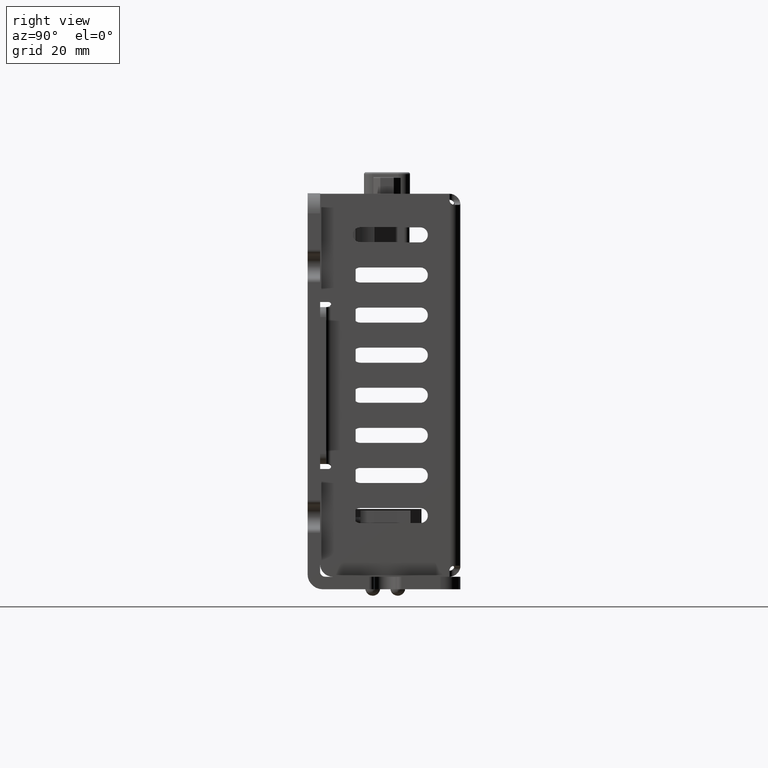
[diagram: clean part render]
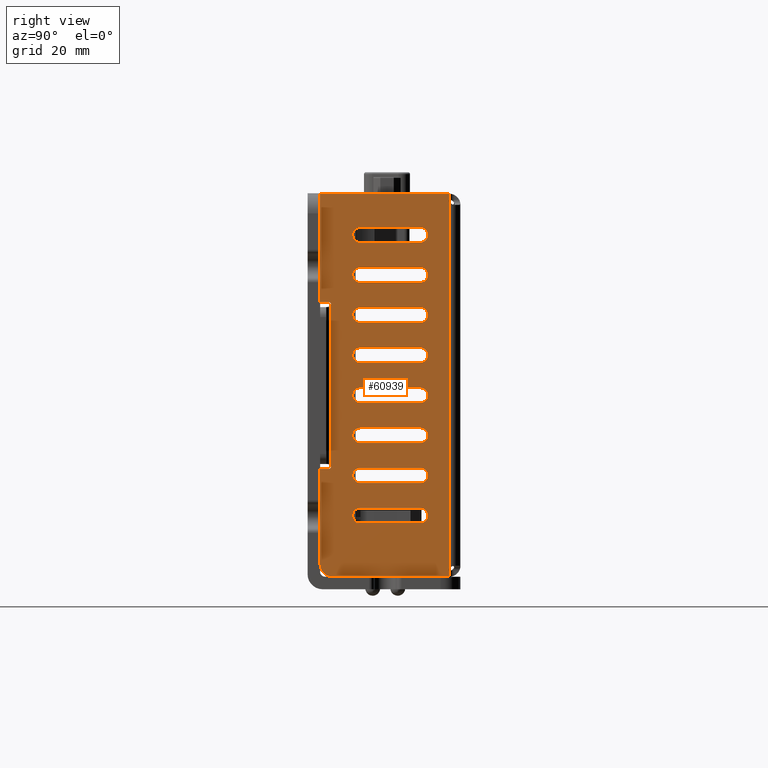
[diagram: same view with one face highlighted and labeled with its STEP entity id]
A machine part, right view. The second image highlights one B-rep face of the part: STEP entity #60939.
In plain terms, the highlighted planar face has unit normal (1, 0, 0).
Its self-contained STEP definition (entity closure, byte-faithful):
#50779=DIRECTION('',(0.E0,-1.E0,0.E0));
#50780=VECTOR('',#50779,7.399971800832E1);
#50781=CARTESIAN_POINT('',(4.620000001314E1,3.699985900416E1,
-2.199999973494E0));
#50782=LINE('',#50781,#50780);
#51295=CARTESIAN_POINT('',(4.620000001314E1,-3.699985900416E1,
-2.199999973494E0));
#51326=CARTESIAN_POINT('',(4.62E1,3.57E1,-2.55E1));
#51327=DIRECTION('',(1.E0,0.E0,0.E0));
#51328=DIRECTION('',(0.E0,0.E0,-1.E0));
#51329=AXIS2_PLACEMENT_3D('',#51326,#51327,#51328);
#51331=DIRECTION('',(0.E0,1.E0,0.E0));
#51332=VECTOR('',#51331,1.9E1);
#51333=CARTESIAN_POINT('',(4.62E1,1.67E1,-2.8E1));
#51334=LINE('',#51333,#51332);
#51335=DIRECTION('',(0.E0,0.E0,1.E0));
#51336=VECTOR('',#51335,1.7E0);
#51337=CARTESIAN_POINT('',(4.62E1,1.67E1,-2.8E1));
#51338=LINE('',#51337,#51336);
#51339=CARTESIAN_POINT('',(4.62E1,1.62E1,-2.63E1));
#51340=DIRECTION('',(1.E0,0.E0,0.E0));
#51341=DIRECTION('',(0.E0,1.E0,0.E0));
#51342=AXIS2_PLACEMENT_3D('',#51339,#51340,#51341);
#51344=DIRECTION('',(1.421085471520E-14,-1.E0,1.421085471520E-14));
#51345=VECTOR('',#51344,5.E-1);
#51346=CARTESIAN_POINT('',(4.62E1,1.62E1,-2.58E1));
#51347=LINE('',#51346,#51345);
#51348=DIRECTION('',(-1.421085471520E-14,-1.E0,-1.421085471520E-14));
#51349=VECTOR('',#51348,5.E-1);
#51350=CARTESIAN_POINT('',(4.62E1,-1.56E1,-2.58E1));
#51351=LINE('',#51350,#51349);
#51352=CARTESIAN_POINT('',(4.62E1,-1.61E1,-2.63E1));
#51353=DIRECTION('',(-1.E0,0.E0,0.E0));
#51354=DIRECTION('',(0.E0,-1.E0,0.E0));
#51355=AXIS2_PLACEMENT_3D('',#51352,#51353,#51354);
#51357=DIRECTION('',(0.E0,0.E0,1.E0));
#51358=VECTOR('',#51357,1.7E0);
#51359=CARTESIAN_POINT('',(4.62E1,-1.66E1,-2.8E1));
#51360=LINE('',#51359,#51358);
#51361=DIRECTION('',(0.E0,1.E0,0.E0));
#51362=VECTOR('',#51361,2.15E1);
#51363=CARTESIAN_POINT('',(4.62E1,-3.81E1,-2.8E1));
#51364=LINE('',#51363,#51362);
#51365=CARTESIAN_POINT('',(4.62E1,-3.81E1,-2.79E1));
#51366=DIRECTION('',(1.E0,0.E0,0.E0));
#51367=DIRECTION('',(0.E0,-1.E0,0.E0));
#51368=AXIS2_PLACEMENT_3D('',#51365,#51366,#51367);
#51370=DIRECTION('',(0.E0,0.E0,-1.E0));
#51371=VECTOR('',#51370,2.57E1);
#51372=CARTESIAN_POINT('',(4.62E1,-3.82E1,-2.2E0));
#51373=LINE('',#51372,#51371);
#51374=DIRECTION('',(1.094593923855E-8,1.E0,2.208610212725E-8));
#51375=VECTOR('',#51374,1.200140995838E0);
#51376=CARTESIAN_POINT('',(4.62E1,-3.82E1,-2.2E0));
#51377=LINE('',#51376,#51375);
#51378=DIRECTION('',(1.094593923855E-8,-1.E0,2.208610212725E-8));
#51379=VECTOR('',#51378,1.200140995838E0);
#51380=CARTESIAN_POINT('',(4.62E1,3.82E1,-2.2E0));
#51381=LINE('',#51380,#51379);
#51382=DIRECTION('',(0.E0,0.E0,1.E0));
#51383=VECTOR('',#51382,2.33E1);
#51384=CARTESIAN_POINT('',(4.62E1,3.82E1,-2.55E1));
#51385=LINE('',#51384,#51383);
#51386=CARTESIAN_POINT('',(4.62E1,-3.E1,-8.E0));
#51387=DIRECTION('',(1.E0,0.E0,0.E0));
#51388=DIRECTION('',(0.E0,1.E0,0.E0));
#51389=AXIS2_PLACEMENT_3D('',#51386,#51387,#51388);
#51391=DIRECTION('',(0.E0,0.E0,-1.E0));
#51392=VECTOR('',#51391,1.2E1);
#51393=CARTESIAN_POINT('',(4.62E1,-3.15E1,-8.E0));
#51394=LINE('',#51393,#51392);
#51395=CARTESIAN_POINT('',(4.62E1,-3.E1,-2.E1));
#51396=DIRECTION('',(1.E0,0.E0,0.E0));
#51397=DIRECTION('',(0.E0,-1.E0,0.E0));
#51398=AXIS2_PLACEMENT_3D('',#51395,#51396,#51397);
#51400=DIRECTION('',(0.E0,0.E0,1.E0));
#51401=VECTOR('',#51400,1.2E1);
#51402=CARTESIAN_POINT('',(4.62E1,-2.85E1,-2.E1));
#51403=LINE('',#51402,#51401);
#51404=CARTESIAN_POINT('',(4.62E1,-2.2E1,-8.E0));
#51405=DIRECTION('',(1.E0,0.E0,0.E0));
#51406=DIRECTION('',(0.E0,1.E0,0.E0));
#51407=AXIS2_PLACEMENT_3D('',#51404,#51405,#51406);
#51409=DIRECTION('',(0.E0,0.E0,-1.E0));
#51410=VECTOR('',#51409,1.2E1);
#51411=CARTESIAN_POINT('',(4.62E1,-2.35E1,-8.E0));
#51412=LINE('',#51411,#51410);
#51413=CARTESIAN_POINT('',(4.62E1,-2.2E1,-2.E1));
#51414=DIRECTION('',(1.E0,0.E0,0.E0));
#51415=DIRECTION('',(0.E0,-1.E0,-4.026408835974E-14));
#51416=AXIS2_PLACEMENT_3D('',#51413,#51414,#51415);
#51418=DIRECTION('',(0.E0,0.E0,1.E0));
#51419=VECTOR('',#51418,1.2E1);
#51420=CARTESIAN_POINT('',(4.62E1,-2.05E1,-2.E1));
#51421=LINE('',#51420,#51419);
#51422=CARTESIAN_POINT('',(4.62E1,-1.4E1,-8.E0));
#51423=DIRECTION('',(1.E0,0.E0,0.E0));
#51424=DIRECTION('',(0.E0,1.E0,0.E0));
#51425=AXIS2_PLACEMENT_3D('',#51422,#51423,#51424);
#51427=DIRECTION('',(0.E0,0.E0,-1.E0));
#51428=VECTOR('',#51427,1.2E1);
#51429=CARTESIAN_POINT('',(4.62E1,-1.55E1,-8.E0));
#51430=LINE('',#51429,#51428);
#51431=CARTESIAN_POINT('',(4.62E1,-1.4E1,-2.E1));
#51432=DIRECTION('',(1.E0,0.E0,0.E0));
#51433=DIRECTION('',(0.E0,-1.E0,-4.026408835974E-14));
#51434=AXIS2_PLACEMENT_3D('',#51431,#51432,#51433);
#51436=DIRECTION('',(0.E0,0.E0,1.E0));
#51437=VECTOR('',#51436,1.2E1);
#51438=CARTESIAN_POINT('',(4.62E1,-1.25E1,-2.E1));
#51439=LINE('',#51438,#51437);
#51440=CARTESIAN_POINT('',(4.62E1,-6.E0,-8.E0));
#51441=DIRECTION('',(1.E0,0.E0,0.E0));
#51442=DIRECTION('',(0.E0,1.E0,0.E0));
#51443=AXIS2_PLACEMENT_3D('',#51440,#51441,#51442);
#51445=DIRECTION('',(0.E0,0.E0,-1.E0));
#51446=VECTOR('',#51445,1.2E1);
#51447=CARTESIAN_POINT('',(4.62E1,-7.5E0,-8.E0));
#51448=LINE('',#51447,#51446);
#51449=CARTESIAN_POINT('',(4.62E1,-6.E0,-2.E1));
#51450=DIRECTION('',(1.E0,0.E0,0.E0));
#51451=DIRECTION('',(0.E0,-1.E0,-4.026408835974E-14));
#51452=AXIS2_PLACEMENT_3D('',#51449,#51450,#51451);
#51454=DIRECTION('',(0.E0,0.E0,1.E0));
#51455=VECTOR('',#51454,1.2E1);
#51456=CARTESIAN_POINT('',(4.62E1,-4.5E0,-2.E1));
#51457=LINE('',#51456,#51455);
#51458=CARTESIAN_POINT('',(4.62E1,2.E0,-8.E0));
#51459=DIRECTION('',(1.E0,0.E0,0.E0));
#51460=DIRECTION('',(0.E0,1.E0,0.E0));
#51461=AXIS2_PLACEMENT_3D('',#51458,#51459,#51460);
#51463=DIRECTION('',(0.E0,0.E0,-1.E0));
#51464=VECTOR('',#51463,1.2E1);
#51465=CARTESIAN_POINT('',(4.62E1,5.E-1,-8.E0));
#51466=LINE('',#51465,#51464);
#51467=CARTESIAN_POINT('',(4.62E1,2.E0,-2.E1));
#51468=DIRECTION('',(1.E0,0.E0,0.E0));
#51469=DIRECTION('',(0.E0,-1.E0,0.E0));
#51470=AXIS2_PLACEMENT_3D('',#51467,#51468,#51469);
#51472=DIRECTION('',(0.E0,0.E0,1.E0));
#51473=VECTOR('',#51472,1.2E1);
#51474=CARTESIAN_POINT('',(4.62E1,3.5E0,-2.E1));
#51475=LINE('',#51474,#51473);
#51476=CARTESIAN_POINT('',(4.62E1,1.E1,-8.E0));
#51477=DIRECTION('',(1.E0,0.E0,0.E0));
#51478=DIRECTION('',(0.E0,1.E0,0.E0));
#51479=AXIS2_PLACEMENT_3D('',#51476,#51477,#51478);
#51481=DIRECTION('',(0.E0,0.E0,-1.E0));
#51482=VECTOR('',#51481,1.2E1);
#51483=CARTESIAN_POINT('',(4.62E1,8.5E0,-8.E0));
#51484=LINE('',#51483,#51482);
#51485=CARTESIAN_POINT('',(4.62E1,1.E1,-2.E1));
#51486=DIRECTION('',(1.E0,0.E0,0.E0));
#51487=DIRECTION('',(0.E0,-1.E0,0.E0));
#51488=AXIS2_PLACEMENT_3D('',#51485,#51486,#51487);
#51490=DIRECTION('',(0.E0,0.E0,1.E0));
#51491=VECTOR('',#51490,1.2E1);
#51492=CARTESIAN_POINT('',(4.62E1,1.15E1,-2.E1));
#51493=LINE('',#51492,#51491);
#51494=CARTESIAN_POINT('',(4.62E1,1.8E1,-8.E0));
#51495=DIRECTION('',(1.E0,0.E0,0.E0));
#51496=DIRECTION('',(0.E0,1.E0,0.E0));
#51497=AXIS2_PLACEMENT_3D('',#51494,#51495,#51496);
#51499=DIRECTION('',(0.E0,0.E0,-1.E0));
#51500=VECTOR('',#51499,1.2E1);
#51501=CARTESIAN_POINT('',(4.62E1,1.65E1,-8.E0));
#51502=LINE('',#51501,#51500);
#51503=CARTESIAN_POINT('',(4.62E1,1.8E1,-2.E1));
#51504=DIRECTION('',(1.E0,0.E0,0.E0));
#51505=DIRECTION('',(0.E0,-1.E0,0.E0));
#51506=AXIS2_PLACEMENT_3D('',#51503,#51504,#51505);
#51508=DIRECTION('',(0.E0,0.E0,1.E0));
#51509=VECTOR('',#51508,1.2E1);
#51510=CARTESIAN_POINT('',(4.62E1,1.95E1,-2.E1));
#51511=LINE('',#51510,#51509);
#51512=CARTESIAN_POINT('',(4.62E1,2.6E1,-8.E0));
#51513=DIRECTION('',(1.E0,0.E0,0.E0));
#51514=DIRECTION('',(0.E0,1.E0,0.E0));
#51515=AXIS2_PLACEMENT_3D('',#51512,#51513,#51514);
#51517=DIRECTION('',(0.E0,0.E0,-1.E0));
#51518=VECTOR('',#51517,1.2E1);
#51519=CARTESIAN_POINT('',(4.62E1,2.45E1,-8.E0));
#51520=LINE('',#51519,#51518);
#51521=CARTESIAN_POINT('',(4.62E1,2.6E1,-2.E1));
#51522=DIRECTION('',(1.E0,0.E0,0.E0));
#51523=DIRECTION('',(0.E0,-1.E0,0.E0));
#51524=AXIS2_PLACEMENT_3D('',#51521,#51522,#51523);
#51526=DIRECTION('',(0.E0,0.E0,1.E0));
#51527=VECTOR('',#51526,1.2E1);
#51528=CARTESIAN_POINT('',(4.62E1,2.75E1,-2.E1));
#51529=LINE('',#51528,#51527);
#51542=CARTESIAN_POINT('',(4.620000001314E1,3.699985900416E1,
-2.199999973494E0));
#52722=DIRECTION('',(0.E0,1.E0,0.E0));
#52723=VECTOR('',#52722,3.13E1);
#52724=CARTESIAN_POINT('',(4.62E1,-1.56E1,-2.58E1));
#52725=LINE('',#52724,#52723);
#56899=CARTESIAN_POINT('',(4.62E1,-3.82E1,-2.79E1));
#56900=CARTESIAN_POINT('',(4.62E1,-3.81E1,-2.8E1));
#56901=VERTEX_POINT('',#56899);
#56902=VERTEX_POINT('',#56900);
#56907=CARTESIAN_POINT('',(4.62E1,-3.82E1,-2.2E0));
#56908=VERTEX_POINT('',#56907);
#56963=VERTEX_POINT('',#51295);
#56965=VERTEX_POINT('',#51542);
#56978=CARTESIAN_POINT('',(4.62E1,-1.66E1,-2.8E1));
#56979=VERTEX_POINT('',#56978);
#56986=CARTESIAN_POINT('',(4.62E1,-1.56E1,-2.58E1));
#56987=CARTESIAN_POINT('',(4.62E1,1.57E1,-2.58E1));
#56988=VERTEX_POINT('',#56986);
#56989=VERTEX_POINT('',#56987);
#57012=CARTESIAN_POINT('',(4.62E1,1.62E1,-2.58E1));
#57013=VERTEX_POINT('',#57012);
#57016=CARTESIAN_POINT('',(4.62E1,-1.61E1,-2.58E1));
#57017=VERTEX_POINT('',#57016);
#57251=CARTESIAN_POINT('',(4.62E1,3.57E1,-2.8E1));
#57252=CARTESIAN_POINT('',(4.62E1,3.82E1,-2.55E1));
#57253=VERTEX_POINT('',#57251);
#57254=VERTEX_POINT('',#57252);
#57259=CARTESIAN_POINT('',(4.62E1,3.82E1,-2.2E0));
#57260=VERTEX_POINT('',#57259);
#57267=CARTESIAN_POINT('',(4.62E1,1.67E1,-2.8E1));
#57268=VERTEX_POINT('',#57267);
#57827=CARTESIAN_POINT('',(4.62E1,-2.85E1,-8.E0));
#57828=CARTESIAN_POINT('',(4.62E1,-3.15E1,-8.E0));
#57829=VERTEX_POINT('',#57827);
#57830=VERTEX_POINT('',#57828);
#57831=CARTESIAN_POINT('',(4.62E1,-3.15E1,-2.E1));
#57832=VERTEX_POINT('',#57831);
#57833=CARTESIAN_POINT('',(4.62E1,-2.85E1,-2.E1));
#57834=VERTEX_POINT('',#57833);
#57859=CARTESIAN_POINT('',(4.62E1,-2.05E1,-8.E0));
#57860=CARTESIAN_POINT('',(4.62E1,-2.35E1,-8.E0));
#57861=VERTEX_POINT('',#57859);
#57862=VERTEX_POINT('',#57860);
#57863=CARTESIAN_POINT('',(4.62E1,-2.35E1,-2.E1));
#57864=VERTEX_POINT('',#57863);
#57865=CARTESIAN_POINT('',(4.62E1,-2.05E1,-2.E1));
#57866=VERTEX_POINT('',#57865);
#57891=CARTESIAN_POINT('',(4.62E1,-1.25E1,-8.E0));
#57892=CARTESIAN_POINT('',(4.62E1,-1.55E1,-8.E0));
#57893=VERTEX_POINT('',#57891);
#57894=VERTEX_POINT('',#57892);
#57895=CARTESIAN_POINT('',(4.62E1,-1.55E1,-2.E1));
#57896=VERTEX_POINT('',#57895);
#57897=CARTESIAN_POINT('',(4.62E1,-1.25E1,-2.E1));
#57898=VERTEX_POINT('',#57897);
#58019=CARTESIAN_POINT('',(4.62E1,-4.5E0,-8.E0));
#58020=CARTESIAN_POINT('',(4.62E1,-7.5E0,-8.E0));
#58021=VERTEX_POINT('',#58019);
#58022=VERTEX_POINT('',#58020);
#58023=CARTESIAN_POINT('',(4.62E1,-7.5E0,-2.E1));
#58024=VERTEX_POINT('',#58023);
#58025=CARTESIAN_POINT('',(4.62E1,-4.5E0,-2.E1));
#58026=VERTEX_POINT('',#58025);
#58051=CARTESIAN_POINT('',(4.62E1,3.5E0,-8.E0));
#58052=CARTESIAN_POINT('',(4.62E1,5.E-1,-8.E0));
#58053=VERTEX_POINT('',#58051);
#58054=VERTEX_POINT('',#58052);
#58055=CARTESIAN_POINT('',(4.62E1,5.E-1,-2.E1));
#58056=VERTEX_POINT('',#58055);
#58057=CARTESIAN_POINT('',(4.62E1,3.5E0,-2.E1));
#58058=VERTEX_POINT('',#58057);
#58083=CARTESIAN_POINT('',(4.62E1,1.15E1,-8.E0));
#58084=CARTESIAN_POINT('',(4.62E1,8.5E0,-8.E0));
#58085=VERTEX_POINT('',#58083);
#58086=VERTEX_POINT('',#58084);
#58087=CARTESIAN_POINT('',(4.62E1,8.5E0,-2.E1));
#58088=VERTEX_POINT('',#58087);
#58089=CARTESIAN_POINT('',(4.62E1,1.15E1,-2.E1));
#58090=VERTEX_POINT('',#58089);
#58115=CARTESIAN_POINT('',(4.62E1,1.95E1,-8.E0));
#58116=CARTESIAN_POINT('',(4.62E1,1.65E1,-8.E0));
#58117=VERTEX_POINT('',#58115);
#58118=VERTEX_POINT('',#58116);
#58119=CARTESIAN_POINT('',(4.62E1,1.65E1,-2.E1));
#58120=VERTEX_POINT('',#58119);
#58121=CARTESIAN_POINT('',(4.62E1,1.95E1,-2.E1));
#58122=VERTEX_POINT('',#58121);
#58147=CARTESIAN_POINT('',(4.62E1,2.75E1,-8.E0));
#58148=CARTESIAN_POINT('',(4.62E1,2.45E1,-8.E0));
#58149=VERTEX_POINT('',#58147);
#58150=VERTEX_POINT('',#58148);
#58151=CARTESIAN_POINT('',(4.62E1,2.45E1,-2.E1));
#58152=VERTEX_POINT('',#58151);
#58153=CARTESIAN_POINT('',(4.62E1,2.75E1,-2.E1));
#58154=VERTEX_POINT('',#58153);
#58189=CARTESIAN_POINT('',(4.62E1,1.67E1,-2.63E1));
#58190=VERTEX_POINT('',#58189);
#58195=CARTESIAN_POINT('',(4.62E1,-1.66E1,-2.63E1));
#58196=VERTEX_POINT('',#58195);
#60822=CARTESIAN_POINT('',(4.62E1,-3.6E1,0.E0));
#60823=DIRECTION('',(1.E0,0.E0,0.E0));
#60824=DIRECTION('',(0.E0,-1.E0,0.E0));
#60825=AXIS2_PLACEMENT_3D('',#60822,#60823,#60824);
#60826=PLANE('',#60825);
#60828=ORIENTED_EDGE('',*,*,#60827,.F.);
#60830=ORIENTED_EDGE('',*,*,#60829,.F.);
#60832=ORIENTED_EDGE('',*,*,#60831,.T.);
#60834=ORIENTED_EDGE('',*,*,#60833,.T.);
#60836=ORIENTED_EDGE('',*,*,#60835,.T.);
#60838=ORIENTED_EDGE('',*,*,#60837,.F.);
#60840=ORIENTED_EDGE('',*,*,#60839,.T.);
#60842=ORIENTED_EDGE('',*,*,#60841,.F.);
#60844=ORIENTED_EDGE('',*,*,#60843,.F.);
#60846=ORIENTED_EDGE('',*,*,#60845,.F.);
#60848=ORIENTED_EDGE('',*,*,#60847,.F.);
#60850=ORIENTED_EDGE('',*,*,#60849,.F.);
#60851=ORIENTED_EDGE('',*,*,#60813,.T.);
#60852=ORIENTED_EDGE('',*,*,#60317,.F.);
#60854=ORIENTED_EDGE('',*,*,#60853,.F.);
#60856=ORIENTED_EDGE('',*,*,#60855,.F.);
#60857=EDGE_LOOP('',(#60828,#60830,#60832,#60834,#60836,#60838,#60840,#60842,
#60844,#60846,#60848,#60850,#60851,#60852,#60854,#60856));
#60858=FACE_OUTER_BOUND('',#60857,.F.);
#60860=ORIENTED_EDGE('',*,*,#60859,.T.);
#60862=ORIENTED_EDGE('',*,*,#60861,.T.);
#60864=ORIENTED_EDGE('',*,*,#60863,.T.);
#60866=ORIENTED_EDGE('',*,*,#60865,.T.);
#60867=EDGE_LOOP('',(#60860,#60862,#60864,#60866));
#60868=FACE_BOUND('',#60867,.F.);
#60870=ORIENTED_EDGE('',*,*,#60869,.T.);
#60872=ORIENTED_EDGE('',*,*,#60871,.T.);
#60874=ORIENTED_EDGE('',*,*,#60873,.T.);
#60876=ORIENTED_EDGE('',*,*,#60875,.T.);
#60877=EDGE_LOOP('',(#60870,#60872,#60874,#60876));
#60878=FACE_BOUND('',#60877,.F.);
#60880=ORIENTED_EDGE('',*,*,#60879,.T.);
#60882=ORIENTED_EDGE('',*,*,#60881,.T.);
#60884=ORIENTED_EDGE('',*,*,#60883,.T.);
#60886=ORIENTED_EDGE('',*,*,#60885,.T.);
#60887=EDGE_LOOP('',(#60880,#60882,#60884,#60886));
#60888=FACE_BOUND('',#60887,.F.);
#60890=ORIENTED_EDGE('',*,*,#60889,.T.);
#60892=ORIENTED_EDGE('',*,*,#60891,.T.);
#60894=ORIENTED_EDGE('',*,*,#60893,.T.);
#60896=ORIENTED_EDGE('',*,*,#60895,.T.);
#60897=EDGE_LOOP('',(#60890,#60892,#60894,#60896));
#60898=FACE_BOUND('',#60897,.F.);
#60900=ORIENTED_EDGE('',*,*,#60899,.T.);
#60902=ORIENTED_EDGE('',*,*,#60901,.T.);
#60904=ORIENTED_EDGE('',*,*,#60903,.T.);
#60906=ORIENTED_EDGE('',*,*,#60905,.T.);
#60907=EDGE_LOOP('',(#60900,#60902,#60904,#60906));
#60908=FACE_BOUND('',#60907,.F.);
#60910=ORIENTED_EDGE('',*,*,#60909,.T.);
#60912=ORIENTED_EDGE('',*,*,#60911,.T.);
#60914=ORIENTED_EDGE('',*,*,#60913,.T.);
#60916=ORIENTED_EDGE('',*,*,#60915,.T.);
#60917=EDGE_LOOP('',(#60910,#60912,#60914,#60916));
#60918=FACE_BOUND('',#60917,.F.);
#60920=ORIENTED_EDGE('',*,*,#60919,.T.);
#60922=ORIENTED_EDGE('',*,*,#60921,.T.);
#60924=ORIENTED_EDGE('',*,*,#60923,.T.);
#60926=ORIENTED_EDGE('',*,*,#60925,.T.);
#60927=EDGE_LOOP('',(#60920,#60922,#60924,#60926));
#60928=FACE_BOUND('',#60927,.F.);
#60930=ORIENTED_EDGE('',*,*,#60929,.T.);
#60932=ORIENTED_EDGE('',*,*,#60931,.T.);
#60934=ORIENTED_EDGE('',*,*,#60933,.T.);
#60936=ORIENTED_EDGE('',*,*,#60935,.T.);
#60937=EDGE_LOOP('',(#60930,#60932,#60934,#60936));
#60938=FACE_BOUND('',#60937,.F.);
#60939=ADVANCED_FACE('',(#60858,#60868,#60878,#60888,#60898,#60908,#60918,
#60928,#60938),#60826,.T.);
#51330=CIRCLE('',#51329,2.5E0);
#51343=CIRCLE('',#51342,5.E-1);
#51356=CIRCLE('',#51355,5.E-1);
#51369=CIRCLE('',#51368,1.E-1);
#51390=CIRCLE('',#51389,1.5E0);
#51399=CIRCLE('',#51398,1.5E0);
#51408=CIRCLE('',#51407,1.5E0);
#51417=CIRCLE('',#51416,1.5E0);
#51426=CIRCLE('',#51425,1.5E0);
#51435=CIRCLE('',#51434,1.5E0);
#51444=CIRCLE('',#51443,1.5E0);
#51453=CIRCLE('',#51452,1.5E0);
#51462=CIRCLE('',#51461,1.5E0);
#51471=CIRCLE('',#51470,1.5E0);
#51480=CIRCLE('',#51479,1.5E0);
#51489=CIRCLE('',#51488,1.5E0);
#51498=CIRCLE('',#51497,1.5E0);
#51507=CIRCLE('',#51506,1.5E0);
#51516=CIRCLE('',#51515,1.5E0);
#51525=CIRCLE('',#51524,1.5E0);
#60317=EDGE_CURVE('',#56965,#56963,#50782,.T.);
#60813=EDGE_CURVE('',#56908,#56963,#51377,.T.);
#60827=EDGE_CURVE('',#57253,#57254,#51330,.T.);
#60829=EDGE_CURVE('',#57268,#57253,#51334,.T.);
#60831=EDGE_CURVE('',#57268,#58190,#51338,.T.);
#60833=EDGE_CURVE('',#58190,#57013,#51343,.T.);
#60835=EDGE_CURVE('',#57013,#56989,#51347,.T.);
#60837=EDGE_CURVE('',#56988,#56989,#52725,.T.);
#60839=EDGE_CURVE('',#56988,#57017,#51351,.T.);
#60841=EDGE_CURVE('',#58196,#57017,#51356,.T.);
#60843=EDGE_CURVE('',#56979,#58196,#51360,.T.);
#60845=EDGE_CURVE('',#56902,#56979,#51364,.T.);
#60847=EDGE_CURVE('',#56901,#56902,#51369,.T.);
#60849=EDGE_CURVE('',#56908,#56901,#51373,.T.);
#60853=EDGE_CURVE('',#57260,#56965,#51381,.T.);
#60855=EDGE_CURVE('',#57254,#57260,#51385,.T.);
#60859=EDGE_CURVE('',#57829,#57830,#51390,.T.);
#60861=EDGE_CURVE('',#57830,#57832,#51394,.T.);
#60863=EDGE_CURVE('',#57832,#57834,#51399,.T.);
#60865=EDGE_CURVE('',#57834,#57829,#51403,.T.);
#60869=EDGE_CURVE('',#57861,#57862,#51408,.T.);
#60871=EDGE_CURVE('',#57862,#57864,#51412,.T.);
#60873=EDGE_CURVE('',#57864,#57866,#51417,.T.);
#60875=EDGE_CURVE('',#57866,#57861,#51421,.T.);
#60879=EDGE_CURVE('',#57893,#57894,#51426,.T.);
#60881=EDGE_CURVE('',#57894,#57896,#51430,.T.);
#60883=EDGE_CURVE('',#57896,#57898,#51435,.T.);
#60885=EDGE_CURVE('',#57898,#57893,#51439,.T.);
#60889=EDGE_CURVE('',#58021,#58022,#51444,.T.);
#60891=EDGE_CURVE('',#58022,#58024,#51448,.T.);
#60893=EDGE_CURVE('',#58024,#58026,#51453,.T.);
#60895=EDGE_CURVE('',#58026,#58021,#51457,.T.);
#60899=EDGE_CURVE('',#58053,#58054,#51462,.T.);
#60901=EDGE_CURVE('',#58054,#58056,#51466,.T.);
#60903=EDGE_CURVE('',#58056,#58058,#51471,.T.);
#60905=EDGE_CURVE('',#58058,#58053,#51475,.T.);
#60909=EDGE_CURVE('',#58085,#58086,#51480,.T.);
#60911=EDGE_CURVE('',#58086,#58088,#51484,.T.);
#60913=EDGE_CURVE('',#58088,#58090,#51489,.T.);
#60915=EDGE_CURVE('',#58090,#58085,#51493,.T.);
#60919=EDGE_CURVE('',#58117,#58118,#51498,.T.);
#60921=EDGE_CURVE('',#58118,#58120,#51502,.T.);
#60923=EDGE_CURVE('',#58120,#58122,#51507,.T.);
#60925=EDGE_CURVE('',#58122,#58117,#51511,.T.);
#60929=EDGE_CURVE('',#58149,#58150,#51516,.T.);
#60931=EDGE_CURVE('',#58150,#58152,#51520,.T.);
#60933=EDGE_CURVE('',#58152,#58154,#51525,.T.);
#60935=EDGE_CURVE('',#58154,#58149,#51529,.T.);